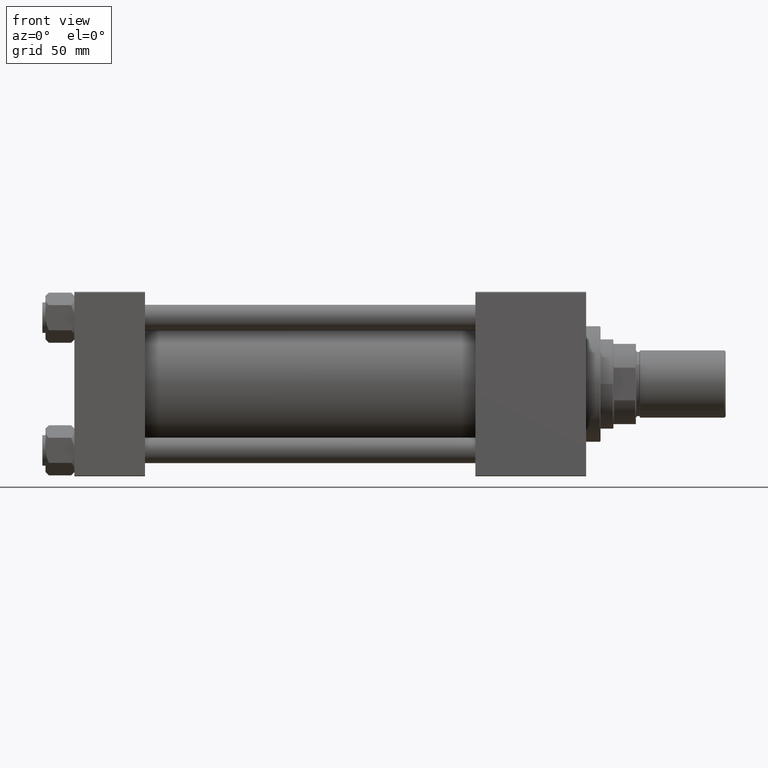
[diagram: clean part render]
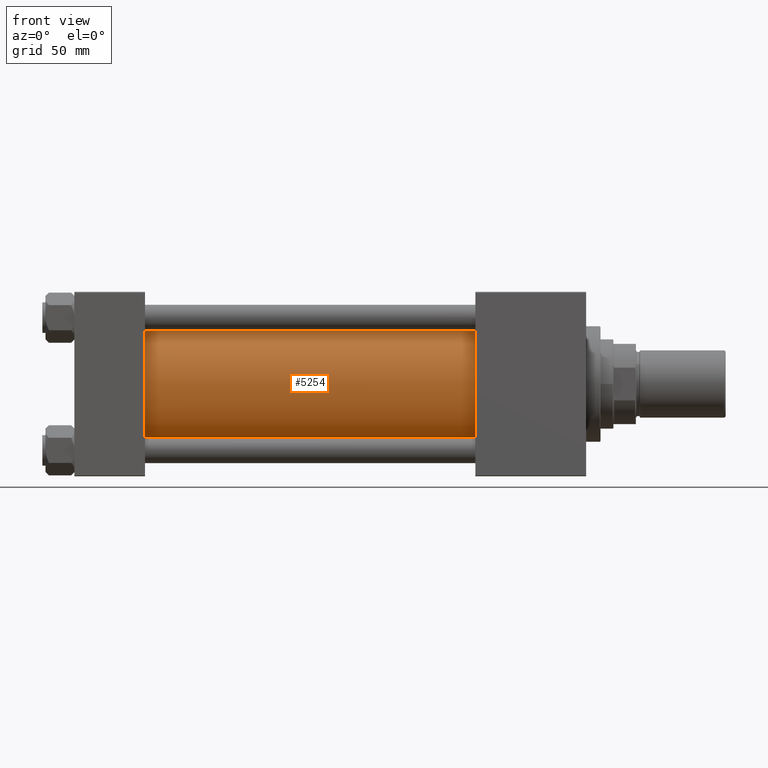
[diagram: same view with one face highlighted and labeled with its STEP entity id]
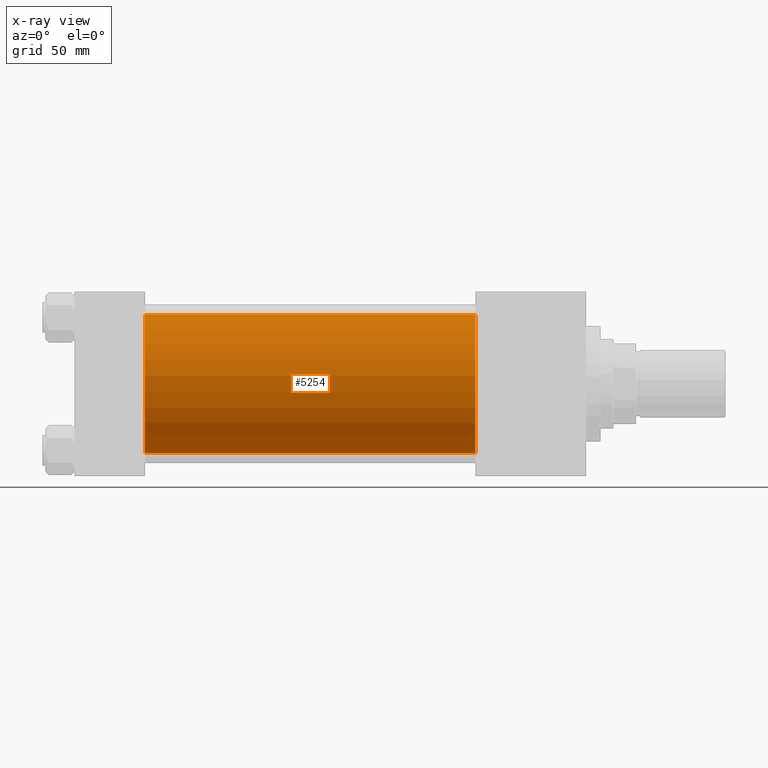
[diagram: x-ray of the same camera — body ghosted, the highlighted face saturated]
A machine part, front view. The second image highlights one B-rep face of the part: STEP entity #5254.
The next image is the same camera in x-ray: the body ghosted, the highlighted face saturated — about 0% of this face is hidden behind the body in this view.
In plain terms, the highlighted cylindrical surface (partial cylindrical patch) has radius 43 mm, axis along (-1, -0, -0).
Its self-contained STEP definition (entity closure, byte-faithful):
#237 = DIRECTION ( 'NONE',  ( 0.000000000000000000, 0.000000000000000000, -1.000000000000000000 ) ) ;
#2809 = ORIENTED_EDGE ( 'NONE', *, *, #46403, .F. ) ;
#3581 = ORIENTED_EDGE ( 'NONE', *, *, #48739, .F. ) ;
#4564 = CIRCLE ( 'NONE', #42673, 43.00000000000000000 ) ;
#5254 = ADVANCED_FACE ( 'NONE', ( #21488 ), #46103, .T. ) ;
#6983 = ORIENTED_EDGE ( 'NONE', *, *, #31708, .T. ) ;
#7319 = VERTEX_POINT ( 'NONE', #37891 ) ;
#7644 = DIRECTION ( 'NONE',  ( -1.000000000000000000, -0.000000000000000000, -0.000000000000000000 ) ) ;
#8686 = CIRCLE ( 'NONE', #30260, 43.00000000000000000 ) ;
#11257 = VECTOR ( 'NONE', #7644, 1000.000000000000000 ) ;
#11667 = CARTESIAN_POINT ( 'NONE',  ( 250.0000000000000000, -2.602085213965210642E-15, 0.000000000000000000 ) ) ;
#11984 = VERTEX_POINT ( 'NONE', #44906 ) ;
#15310 = CARTESIAN_POINT ( 'NONE',  ( 43.99999999999998579, -2.602085213965210642E-15, 0.000000000000000000 ) ) ;
#19570 = LINE ( 'NONE', #26346, #11257 ) ;
#19939 = DIRECTION ( 'NONE',  ( 1.000000000000000000, 0.000000000000000000, 0.000000000000000000 ) ) ;
#21488 = FACE_OUTER_BOUND ( 'NONE', #35238, .T. ) ;
#21743 = CARTESIAN_POINT ( 'NONE',  ( 250.0000000000000000, -2.602085213965210642E-15, 0.000000000000000000 ) ) ;
#23499 = VERTEX_POINT ( 'NONE', #45873 ) ;
#24362 = VERTEX_POINT ( 'NONE', #42008 ) ;
#25657 = DIRECTION ( 'NONE',  ( -1.000000000000000000, -0.000000000000000000, -0.000000000000000000 ) ) ;
#26346 = CARTESIAN_POINT ( 'NONE',  ( 250.0000000000000000, 2.663896022368408223E-15, -43.00000000000000000 ) ) ;
#29902 = CARTESIAN_POINT ( 'NONE',  ( 250.0000000000000000, -2.602085213965210642E-15, 43.00000000000000000 ) ) ;
#30260 = AXIS2_PLACEMENT_3D ( 'NONE', #11667, #19939, #237 ) ;
#30418 = LINE ( 'NONE', #29902, #47466 ) ;
#31394 = DIRECTION ( 'NONE',  ( 0.000000000000000000, 0.000000000000000000, 1.000000000000000000 ) ) ;
#31708 = EDGE_CURVE ( 'NONE', #23499, #7319, #30418, .T. ) ;
#35238 = EDGE_LOOP ( 'NONE', ( #2809, #3581, #6983, #47166 ) ) ;
#37891 = CARTESIAN_POINT ( 'NONE',  ( 43.99999999999998579, -2.602085213965210642E-15, 43.00000000000000000 ) ) ;
#41453 = DIRECTION ( 'NONE',  ( 0.000000000000000000, 0.000000000000000000, 1.000000000000000000 ) ) ;
#42008 = CARTESIAN_POINT ( 'NONE',  ( 250.0000000000000000, 2.663896022368408223E-15, -43.00000000000000000 ) ) ;
#42578 = DIRECTION ( 'NONE',  ( -1.000000000000000000, -0.000000000000000000, -0.000000000000000000 ) ) ;
#42673 = AXIS2_PLACEMENT_3D ( 'NONE', #15310, #47169, #31394 ) ;
#42688 = AXIS2_PLACEMENT_3D ( 'NONE', #21743, #25657, #41453 ) ;
#44906 = CARTESIAN_POINT ( 'NONE',  ( 43.99999999999998579, 2.663896022368408223E-15, -43.00000000000000000 ) ) ;
#45873 = CARTESIAN_POINT ( 'NONE',  ( 250.0000000000000000, -2.602085213965210642E-15, 43.00000000000000000 ) ) ;
#46103 = CYLINDRICAL_SURFACE ( 'NONE', #42688, 43.00000000000000000 ) ;
#46403 = EDGE_CURVE ( 'NONE', #24362, #11984, #19570, .T. ) ;
#47166 = ORIENTED_EDGE ( 'NONE', *, *, #48703, .T. ) ;
#47169 = DIRECTION ( 'NONE',  ( 1.000000000000000000, -0.000000000000000000, 0.000000000000000000 ) ) ;
#47466 = VECTOR ( 'NONE', #42578, 1000.000000000000000 ) ;
#48703 = EDGE_CURVE ( 'NONE', #7319, #11984, #4564, .T. ) ;
#48739 = EDGE_CURVE ( 'NONE', #23499, #24362, #8686, .T. ) ;